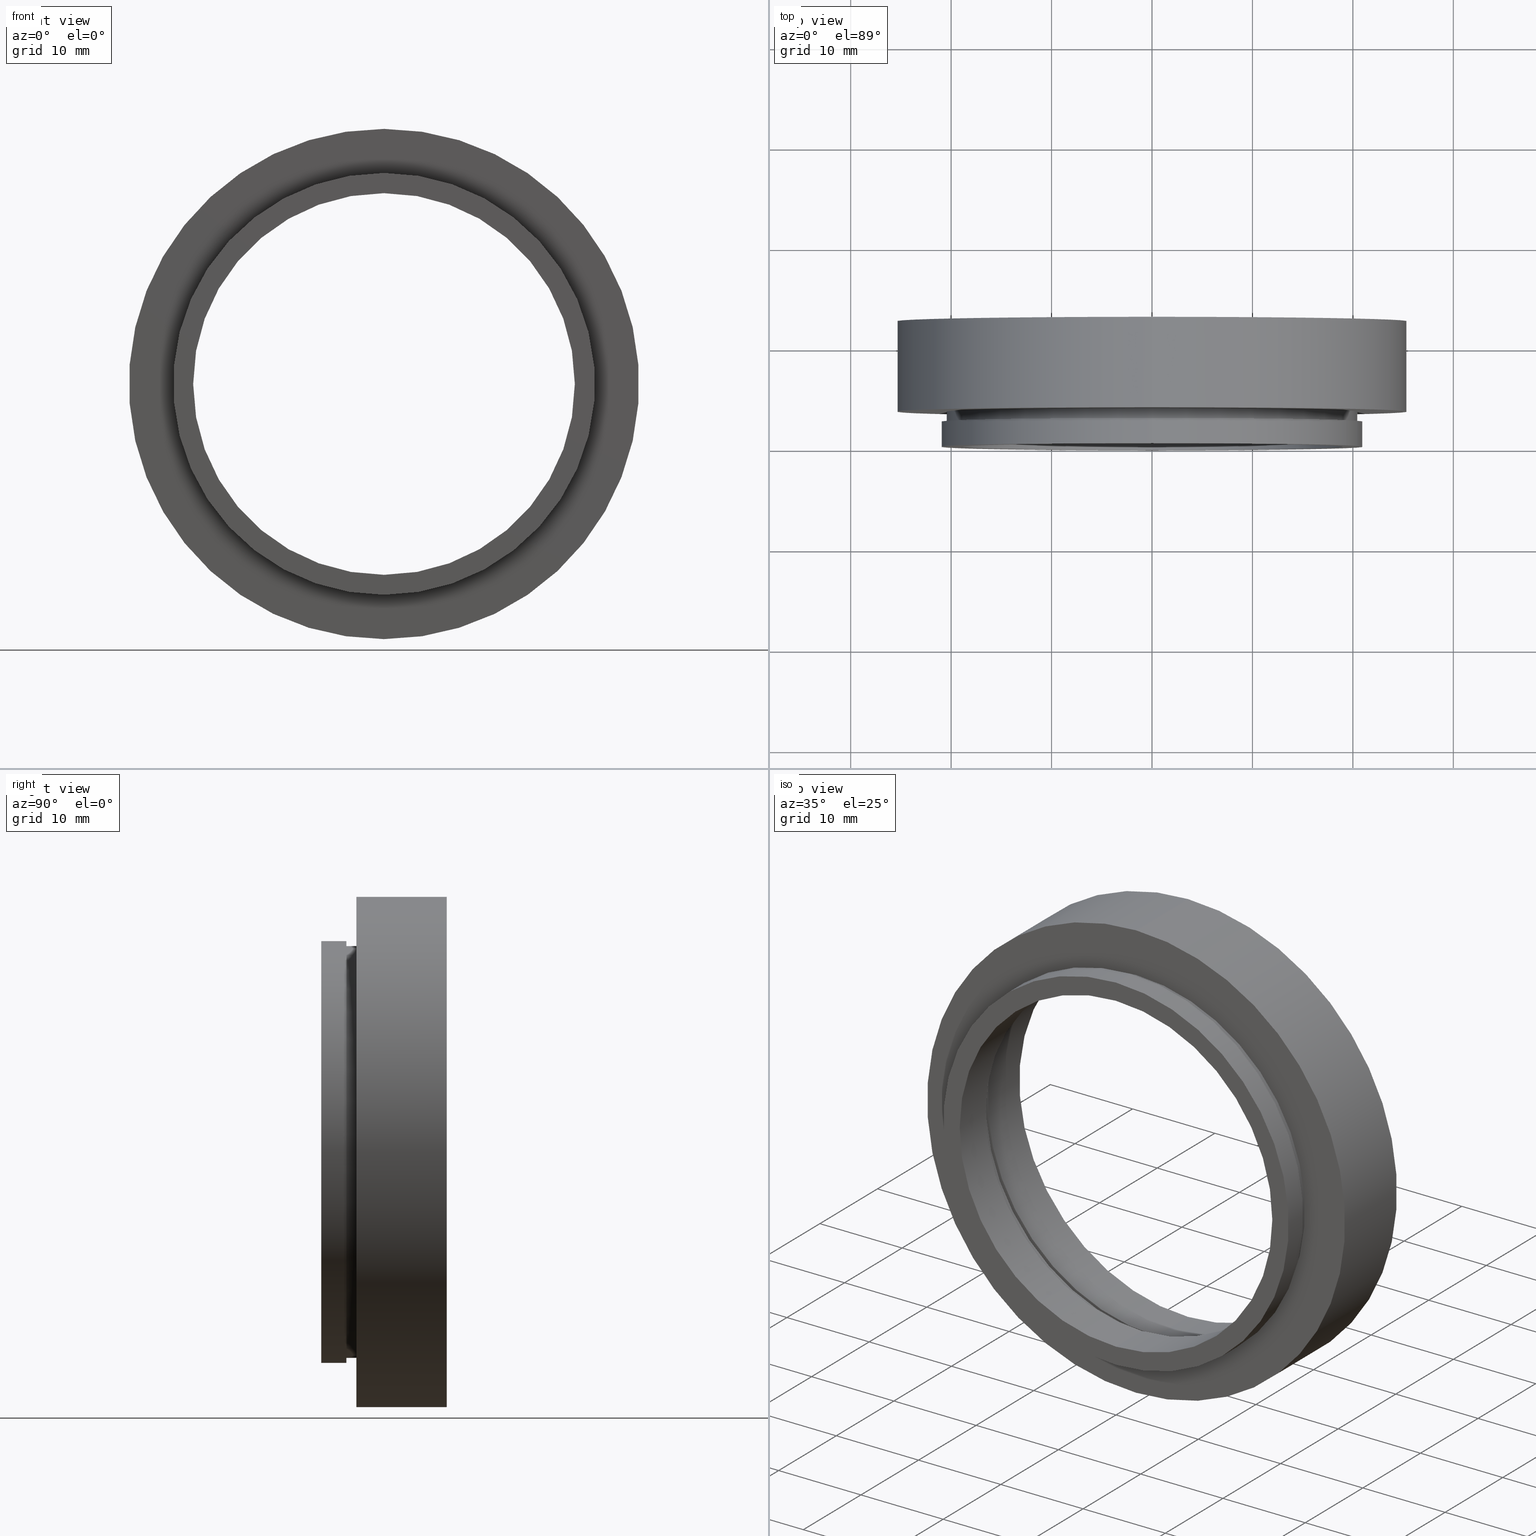
[diagram: canonical four-view strip — front | top / right | iso, engineering-drawing reading convention]
A machine part, canonical four-view strip (front | top / right | iso — engineering-drawing reading convention). The complete STEP part file that produces these views, byte-faithful:
ISO-10303-21;
HEADER;
FILE_DESCRIPTION (( 'STEP AP203' ),
    '1' );
FILE_NAME ('501002.STEP',
    '2019-08-29T06:18:55',
    ( '' ),
    ( '' ),
    'SwSTEP 2.0',
    'SolidWorks 2016',
    '' );
FILE_SCHEMA (( 'CONFIG_CONTROL_DESIGN' ));
ENDSEC;

DATA;
#1 = APPROVAL_PERSON_ORGANIZATION ( #107, #174, #482 ) ;
#2 = CARTESIAN_POINT ( 'NONE',  ( 0.0000000000000000000, 0.0000000000000000000, -20.00000000000000000 ) ) ;
#3 = ORIENTED_EDGE ( 'NONE', *, *, #165, .T. ) ;
#4 = VERTEX_POINT ( 'NONE', #415 ) ;
#5 = DIRECTION ( 'NONE',  ( -0.0000000000000000000, -1.000000000000000000, -0.0000000000000000000 ) ) ;
#6 = FACE_OUTER_BOUND ( 'NONE', #187, .T. ) ;
#7 = FACE_OUTER_BOUND ( 'NONE', #599, .T. ) ;
#8 = AXIS2_PLACEMENT_3D ( 'NONE', #206, #719, #549 ) ;
#9 = CARTESIAN_POINT ( 'NONE',  ( 0.0000000000000000000, 4.500000000000000000, 0.0000000000000000000 ) ) ;
#10 = PLANE ( 'NONE',  #173 ) ;
#11 = CIRCLE ( 'NONE', #564, 20.50000000000000000 ) ;
#12 = EDGE_CURVE ( 'NONE', #325, #627, #545, .T. ) ;
#13 = DIRECTION ( 'NONE',  ( 0.0000000000000000000, -0.0000000000000000000, 1.000000000000000000 ) ) ;
#14 = CARTESIAN_POINT ( 'NONE',  ( 0.0000000000000000000, 7.000000000000000000, 0.0000000000000000000 ) ) ;
#15 = AXIS2_PLACEMENT_3D ( 'NONE', #384, #493, #554 ) ;
#16 = ORGANIZATION ( 'δָ��', 'δָ��', '' ) ;
#17 = DIRECTION ( 'NONE',  ( -0.0000000000000000000, -1.000000000000000000, -0.0000000000000000000 ) ) ;
#18 = ADVANCED_FACE ( 'NONE', ( #93 ), #724, .T. ) ;
#19 = VERTEX_POINT ( 'NONE', #704 ) ;
#20 = DIRECTION ( 'NONE',  ( -0.0000000000000000000, -1.000000000000000000, -0.0000000000000000000 ) ) ;
#21 = EDGE_CURVE ( 'NONE', #445, #163, #298, .T. ) ;
#22 = ADVANCED_FACE ( 'NONE', ( #361, #498 ), #132, .T. ) ;
#23 = CYLINDRICAL_SURFACE ( 'NONE', #79, 19.00000000000000000 ) ;
#24 = AXIS2_PLACEMENT_3D ( 'NONE', #357, #20, #572 ) ;
#25 = DIRECTION ( 'NONE',  ( -0.0000000000000000000, -1.000000000000000000, -0.0000000000000000000 ) ) ;
#26 = VECTOR ( 'NONE', #448, 1000.000000000000000 ) ;
#27 = APPLICATION_PROTOCOL_DEFINITION ( 'international standard', 'config_control_design', 1994, #706 ) ;
#28 = CALENDAR_DATE ( 2019, 29, 8 ) ;
#29 = CC_DESIGN_APPROVAL ( #311, ( #552 ) ) ;
#30 = AXIS2_PLACEMENT_3D ( 'NONE', #586, #474, #330 ) ;
#31 = LINE ( 'NONE', #245, #299 ) ;
#32 = CARTESIAN_POINT ( 'NONE',  ( 0.0000000000000000000, 0.0000000000000000000, 0.0000000000000000000 ) ) ;
#33 = EDGE_CURVE ( 'NONE', #310, #36, #649, .T. ) ;
#34 = DIRECTION ( 'NONE',  ( -0.0000000000000000000, -1.000000000000000000, -0.0000000000000000000 ) ) ;
#35 = CALENDAR_DATE ( 2019, 29, 8 ) ;
#36 = VERTEX_POINT ( 'NONE', #709 ) ;
#37 =( LENGTH_UNIT ( ) NAMED_UNIT ( * ) SI_UNIT ( .MILLI., .METRE. ) );
#38 = DIRECTION ( 'NONE',  ( -0.0000000000000000000, -1.000000000000000000, -0.0000000000000000000 ) ) ;
#39 = FACE_OUTER_BOUND ( 'NONE', #208, .T. ) ;
#40 = DIRECTION ( 'NONE',  ( 0.0000000000000000000, 0.0000000000000000000, -1.000000000000000000 ) ) ;
#41 = ORIENTED_EDGE ( 'NONE', *, *, #165, .F. ) ;
#42 = DIRECTION ( 'NONE',  ( 0.0000000000000000000, 0.0000000000000000000, -1.000000000000000000 ) ) ;
#43 = ORIENTED_EDGE ( 'NONE', *, *, #193, .F. ) ;
#44 = APPROVAL_DATE_TIME ( #668, #211 ) ;
#45 = PRODUCT_DEFINITION ( 'δ֪', '', #727, #512 ) ;
#46 = DIRECTION ( 'NONE',  ( 0.0000000000000000000, 0.0000000000000000000, -1.000000000000000000 ) ) ;
#47 = CARTESIAN_POINT ( 'NONE',  ( 2.510525938252074500E-015, 7.000000000000000000, 20.50000000000000400 ) ) ;
#48 = ORIENTED_EDGE ( 'NONE', *, *, #695, .F. ) ;
#49 = CARTESIAN_POINT ( 'NONE',  ( 0.0000000000000000000, 2.500000000000000000, 0.0000000000000000000 ) ) ;
#50 = CARTESIAN_POINT ( 'NONE',  ( 21.00000000000000000, 2.499999999999999600, 0.0000000000000000000 ) ) ;
#51 = PERSON_AND_ORGANIZATION ( #303, #16 ) ;
#52 = AXIS2_PLACEMENT_3D ( 'NONE', #439, #550, #225 ) ;
#53 = LOCAL_TIME ( 14, 18, 55.00000000000000000, #502 ) ;
#54 = PLANE ( 'NONE',  #674 ) ;
#55 = EDGE_CURVE ( 'NONE', #521, #395, #250, .T. ) ;
#56 = CARTESIAN_POINT ( 'NONE',  ( 0.0000000000000000000, 4.500000000000000000, 0.0000000000000000000 ) ) ;
#57 = ORIENTED_EDGE ( 'NONE', *, *, #354, .T. ) ;
#58 = DATE_AND_TIME ( #35, #182 ) ;
#59 = CARTESIAN_POINT ( 'NONE',  ( 0.0000000000000000000, 0.0000000000000000000, 0.0000000000000000000 ) ) ;
#60 = EDGE_LOOP ( 'NONE', ( #327, #584, #461, #125 ) ) ;
#61 = PLANE ( 'NONE',  #478 ) ;
#62 = PRODUCT ( '501002', '501002', '', ( #470 ) ) ;
#63 = VERTEX_POINT ( 'NONE', #149 ) ;
#64 = CARTESIAN_POINT ( 'NONE',  ( 0.0000000000000000000, 4.500000000000000000, -20.00000000000000000 ) ) ;
#65 = ADVANCED_FACE ( 'NONE', ( #506 ), #714, .T. ) ;
#66 = ORIENTED_EDGE ( 'NONE', *, *, #483, .F. ) ;
#67 = DIRECTION ( 'NONE',  ( 0.0000000000000000000, 0.0000000000000000000, -1.000000000000000000 ) ) ;
#68 = CARTESIAN_POINT ( 'NONE',  ( 2.326828918379971000E-015, 0.0000000000000000000, 19.00000000000000000 ) ) ;
#69 = ORIENTED_EDGE ( 'NONE', *, *, #664, .F. ) ;
#70 = DATE_AND_TIME ( #469, #577 ) ;
#71 = EDGE_CURVE ( 'NONE', #627, #325, #185, .T. ) ;
#72 = APPLICATION_PROTOCOL_DEFINITION ( 'international standard', 'config_control_design', 1994, #312 ) ;
#73 = APPROVAL_ROLE ( '' ) ;
#74 = PERSON_AND_ORGANIZATION_ROLE ( 'classification_officer' ) ;
#75 = ORIENTED_EDGE ( 'NONE', *, *, #289, .F. ) ;
#76 = CC_DESIGN_PERSON_AND_ORGANIZATION_ASSIGNMENT ( #425, #472, ( #552 ) ) ;
#77 = ADVANCED_FACE ( 'NONE', ( #39 ), #580, .T. ) ;
#78 = DIRECTION ( 'NONE',  ( 0.0000000000000000000, 0.0000000000000000000, 1.000000000000000000 ) ) ;
#79 = AXIS2_PLACEMENT_3D ( 'NONE', #666, #332, #156 ) ;
#80 = ORIENTED_EDGE ( 'NONE', *, *, #722, .T. ) ;
#81 = FACE_OUTER_BOUND ( 'NONE', #60, .T. ) ;
#82 = CARTESIAN_POINT ( 'NONE',  ( 0.0000000000000000000, 6.000000000000000000, 0.0000000000000000000 ) ) ;
#83 = APPROVAL_STATUS ( 'not_yet_approved' ) ;
#84 = ADVANCED_FACE ( 'NONE', ( #6 ), #465, .F. ) ;
#85 = DIRECTION ( 'NONE',  ( 0.0000000000000000000, 0.0000000000000000000, -1.000000000000000000 ) ) ;
#86 = COORDINATED_UNIVERSAL_TIME_OFFSET ( 8, 0, .AHEAD. ) ;
#87 = ORIENTED_EDGE ( 'NONE', *, *, #640, .T. ) ;
#88 = LOCAL_TIME ( 14, 18, 55.00000000000000000, #632 ) ;
#89 = ORIENTED_EDGE ( 'NONE', *, *, #397, .F. ) ;
#90 = ADVANCED_FACE ( 'NONE', ( #641 ), #625, .F. ) ;
#91 = APPROVAL_STATUS ( 'not_yet_approved' ) ;
#92 = AXIS2_PLACEMENT_3D ( 'NONE', #360, #78, #536 ) ;
#93 = FACE_OUTER_BOUND ( 'NONE', #390, .T. ) ;
#94 = LINE ( 'NONE', #105, #678 ) ;
#95 = ORIENTED_EDGE ( 'NONE', *, *, #544, .T. ) ;
#96 = AXIS2_PLACEMENT_3D ( 'NONE', #145, #323, #141 ) ;
#97 = DIRECTION ( 'NONE',  ( -0.0000000000000000000, -1.000000000000000000, -0.0000000000000000000 ) ) ;
#98 = ORIENTED_EDGE ( 'NONE', *, *, #33, .F. ) ;
#99 = CARTESIAN_POINT ( 'NONE',  ( 0.0000000000000000000, 6.000000000000000000, 0.0000000000000000000 ) ) ;
#100 = EDGE_CURVE ( 'NONE', #650, #633, #430, .T. ) ;
#101 = ORIENTED_EDGE ( 'NONE', *, *, #12, .F. ) ;
#102 = DIRECTION ( 'NONE',  ( -0.0000000000000000000, -1.000000000000000000, -0.0000000000000000000 ) ) ;
#103 = AXIS2_PLACEMENT_3D ( 'NONE', #638, #353, #685 ) ;
#104 = CARTESIAN_POINT ( 'NONE',  ( 2.510525938252074500E-015, 12.50000000000000000, 20.50000000000000400 ) ) ;
#105 = CARTESIAN_POINT ( 'NONE',  ( 0.0000000000000000000, 0.0000000000000000000, -25.39999999999999900 ) ) ;
#106 = ORIENTED_EDGE ( 'NONE', *, *, #530, .T. ) ;
#107 = PERSON_AND_ORGANIZATION ( #303, #16 ) ;
#108 = VECTOR ( 'NONE', #522, 1000.000000000000000 ) ;
#109 = ORIENTED_EDGE ( 'NONE', *, *, #258, .T. ) ;
#110 = ORIENTED_EDGE ( 'NONE', *, *, #695, .T. ) ;
#111 = CARTESIAN_POINT ( 'NONE',  ( 0.0000000000000000000, 3.500000000000000000, 0.0000000000000000000 ) ) ;
#112 = DIRECTION ( 'NONE',  ( 0.0000000000000000000, 0.0000000000000000000, -1.000000000000000000 ) ) ;
#113 = CIRCLE ( 'NONE', #236, 19.00000000000000000 ) ;
#114 = PRODUCT_RELATED_PRODUCT_CATEGORY ( 'detail', '', ( #62 ) ) ;
#115 = EDGE_CURVE ( 'NONE', #242, #305, #217, .T. ) ;
#116 = CARTESIAN_POINT ( 'NONE',  ( 0.0000000000000000000, 0.0000000000000000000, 0.0000000000000000000 ) ) ;
#117 = ORIENTED_EDGE ( 'NONE', *, *, #247, .T. ) ;
#118 = DIRECTION ( 'NONE',  ( -0.0000000000000000000, -1.000000000000000000, -0.0000000000000000000 ) ) ;
#119 = DIRECTION ( 'NONE',  ( -0.0000000000000000000, -1.000000000000000000, -0.0000000000000000000 ) ) ;
#120 = CARTESIAN_POINT ( 'NONE',  ( 0.0000000000000000000, 0.0000000000000000000, 0.0000000000000000000 ) ) ;
#121 = VERTEX_POINT ( 'NONE', #326 ) ;
#122 = LINE ( 'NONE', #497, #432 ) ;
#123 = LOCAL_TIME ( 14, 18, 55.00000000000000000, #86 ) ;
#124 = ADVANCED_FACE ( 'NONE', ( #166 ), #524, .T. ) ;
#125 = ORIENTED_EDGE ( 'NONE', *, *, #417, .F. ) ;
#126 = EDGE_CURVE ( 'NONE', #36, #310, #616, .T. ) ;
#127 = APPROVAL ( #91, 'δָ��' ) ;
#128 = DIRECTION ( 'NONE',  ( 0.0000000000000000000, 0.0000000000000000000, -1.000000000000000000 ) ) ;
#129 = CIRCLE ( 'NONE', #426, 20.50000000000000000 ) ;
#130 = CARTESIAN_POINT ( 'NONE',  ( 21.10000000000000100, 6.000000000000000000, 0.0000000000000000000 ) ) ;
#131 = ORIENTED_EDGE ( 'NONE', *, *, #71, .T. ) ;
#132 = PLANE ( 'NONE',  #221 ) ;
#133 = DIRECTION ( 'NONE',  ( -0.0000000000000000000, -1.000000000000000000, -0.0000000000000000000 ) ) ;
#134 = DATE_TIME_ROLE ( 'creation_date' ) ;
#135 = AXIS2_PLACEMENT_3D ( 'NONE', #721, #38, #215 ) ;
#136 = PERSON_AND_ORGANIZATION_ROLE ( 'creator' ) ;
#137 = FACE_BOUND ( 'NONE', #181, .T. ) ;
#138 = CARTESIAN_POINT ( 'NONE',  ( 25.39999999999999900, 12.50000000000000000, 0.0000000000000000000 ) ) ;
#139 = LINE ( 'NONE', #462, #108 ) ;
#140 = ADVANCED_BREP_SHAPE_REPRESENTATION ( '501002', ( #595, #92 ), #359 ) ;
#141 = DIRECTION ( 'NONE',  ( 0.0000000000000000000, 0.0000000000000000000, -1.000000000000000000 ) ) ;
#142 = VERTEX_POINT ( 'NONE', #603 ) ;
#143 = PERSON_AND_ORGANIZATION ( #303, #16 ) ;
#144 = EDGE_LOOP ( 'NONE', ( #365, #570, #532, #642 ) ) ;
#145 = CARTESIAN_POINT ( 'NONE',  ( 0.0000000000000000000, 0.0000000000000000000, 0.0000000000000000000 ) ) ;
#146 = ORIENTED_EDGE ( 'NONE', *, *, #602, .T. ) ;
#147 = CARTESIAN_POINT ( 'NONE',  ( 0.0000000000000000000, 2.499999999999999600, 0.0000000000000000000 ) ) ;
#148 = ORIENTED_EDGE ( 'NONE', *, *, #71, .F. ) ;
#149 = CARTESIAN_POINT ( 'NONE',  ( 2.510525938252074500E-015, 3.500000000000000000, 20.50000000000000000 ) ) ;
#150 = CARTESIAN_POINT ( 'NONE',  ( 0.0000000000000000000, 0.0000000000000000000, -21.00000000000000000 ) ) ;
#151 = FACE_OUTER_BOUND ( 'NONE', #161, .T. ) ;
#152 = DIRECTION ( 'NONE',  ( -0.0000000000000000000, -1.000000000000000000, -0.0000000000000000000 ) ) ;
#153 = SECURITY_CLASSIFICATION_LEVEL ( 'unclassified' ) ;
#154 = CARTESIAN_POINT ( 'NONE',  ( 2.510525938252074500E-015, 0.0000000000000000000, 20.50000000000000000 ) ) ;
#155 = CIRCLE ( 'NONE', #279, 20.00000000000000000 ) ;
#156 = DIRECTION ( 'NONE',  ( 0.0000000000000000000, 0.0000000000000000000, -1.000000000000000000 ) ) ;
#157 = EDGE_CURVE ( 'NONE', #380, #521, #604, .T. ) ;
#158 = DIRECTION ( 'NONE',  ( -0.0000000000000000000, -1.000000000000000000, -0.0000000000000000000 ) ) ;
#159 = DIRECTION ( 'NONE',  ( 0.0000000000000000000, 0.0000000000000000000, -1.000000000000000000 ) ) ;
#160 = DATE_AND_TIME ( #492, #443 ) ;
#161 = EDGE_LOOP ( 'NONE', ( #101, #563, #537, #411 ) ) ;
#162 = PERSON_AND_ORGANIZATION ( #303, #16 ) ;
#163 = VERTEX_POINT ( 'NONE', #435 ) ;
#164 = SECURITY_CLASSIFICATION ( '', '', #647 ) ;
#165 = EDGE_CURVE ( 'NONE', #395, #521, #471, .T. ) ;
#166 = FACE_OUTER_BOUND ( 'NONE', #343, .T. ) ;
#167 = FACE_BOUND ( 'NONE', #652, .T. ) ;
#168 = AXIS2_PLACEMENT_3D ( 'NONE', #335, #158, #553 ) ;
#169 = DIRECTION ( 'NONE',  ( -0.0000000000000000000, -1.000000000000000000, -0.0000000000000000000 ) ) ;
#170 = CIRCLE ( 'NONE', #457, 20.00000000000000000 ) ;
#171 = CIRCLE ( 'NONE', #387, 21.10000000000000100 ) ;
#172 = COORDINATED_UNIVERSAL_TIME_OFFSET ( 8, 0, .AHEAD. ) ;
#173 = AXIS2_PLACEMENT_3D ( 'NONE', #503, #229, #394 ) ;
#174 = APPROVAL ( #83, 'δָ��' ) ;
#175 = CIRCLE ( 'NONE', #15, 25.39999999999999900 ) ;
#176 = EDGE_CURVE ( 'NONE', #19, #540, #175, .T. ) ;
#177 = CARTESIAN_POINT ( 'NONE',  ( 2.510525938252074500E-015, 0.0000000000000000000, 20.50000000000000400 ) ) ;
#178 = AXIS2_PLACEMENT_3D ( 'NONE', #116, #571, #398 ) ;
#179 = PERSON_AND_ORGANIZATION ( #303, #16 ) ;
#180 = DIRECTION ( 'NONE',  ( 0.0000000000000000000, 0.0000000000000000000, -1.000000000000000000 ) ) ;
#181 = EDGE_LOOP ( 'NONE', ( #447, #675 ) ) ;
#182 = LOCAL_TIME ( 14, 18, 55.00000000000000000, #204 ) ;
#183 = EDGE_LOOP ( 'NONE', ( #385, #43 ) ) ;
#184 = DIRECTION ( 'NONE',  ( 0.0000000000000000000, 0.0000000000000000000, -1.000000000000000000 ) ) ;
#185 = CIRCLE ( 'NONE', #628, 20.50000000000000400 ) ;
#186 = LINE ( 'NONE', #68, #489 ) ;
#187 = EDGE_LOOP ( 'NONE', ( #658, #526, #265, #203 ) ) ;
#188 = CARTESIAN_POINT ( 'NONE',  ( 0.0000000000000000000, 6.000000000000000000, -20.00000000000000000 ) ) ;
#189 = VERTEX_POINT ( 'NONE', #436 ) ;
#190 = DIRECTION ( 'NONE',  ( -0.0000000000000000000, -1.000000000000000000, -0.0000000000000000000 ) ) ;
#191 = VECTOR ( 'NONE', #133, 1000.000000000000000 ) ;
#192 = COORDINATED_UNIVERSAL_TIME_OFFSET ( 8, 0, .AHEAD. ) ;
#193 = EDGE_CURVE ( 'NONE', #4, #611, #565, .T. ) ;
#194 = DIRECTION ( 'NONE',  ( 1.000000000000000000, 0.0000000000000000000, 0.0000000000000000000 ) ) ;
#195 = LINE ( 'NONE', #420, #191 ) ;
#196 = VECTOR ( 'NONE', #152, 1000.000000000000000 ) ;
#197 = ORIENTED_EDGE ( 'NONE', *, *, #429, .T. ) ;
#198 = DATE_TIME_ROLE ( 'classification_date' ) ;
#199 = PRODUCT_RELATED_PRODUCT_CATEGORY ( 'detail', '', ( #681 ) ) ;
#200 = ADVANCED_FACE ( 'NONE', ( #81 ), #23, .F. ) ;
#201 = DATE_TIME_ROLE ( 'creation_date' ) ;
#202 = PERSON_AND_ORGANIZATION ( #303, #16 ) ;
#203 = ORIENTED_EDGE ( 'NONE', *, *, #289, .T. ) ;
#204 = COORDINATED_UNIVERSAL_TIME_OFFSET ( 8, 0, .AHEAD. ) ;
#205 = ADVANCED_FACE ( 'NONE', ( #280 ), #369, .F. ) ;
#206 = CARTESIAN_POINT ( 'NONE',  ( 0.0000000000000000000, 0.0000000000000000000, 0.0000000000000000000 ) ) ;
#207 = CC_DESIGN_DATE_AND_TIME_ASSIGNMENT ( #329, #198, ( #164 ) ) ;
#208 = EDGE_LOOP ( 'NONE', ( #423, #356, #95, #407 ) ) ;
#209 = EDGE_CURVE ( 'NONE', #637, #551, #618, .T. ) ;
#210 = AXIS2_PLACEMENT_3D ( 'NONE', #619, #665, #331 ) ;
#211 = APPROVAL ( #418, 'δָ��' ) ;
#212 = CARTESIAN_POINT ( 'NONE',  ( 0.0000000000000000000, 0.0000000000000000000, 0.0000000000000000000 ) ) ;
#213 = CLOSED_SHELL ( 'NONE', ( #352, #578, #596, #481, #65, #124, #200, #84, #520, #18, #241, #77, #246, #543, #705, #367, #301, #205, #22, #90, #370 ) ) ;
#214 = PERSON_AND_ORGANIZATION ( #303, #16 ) ;
#215 = DIRECTION ( 'NONE',  ( 0.0000000000000000000, 0.0000000000000000000, -1.000000000000000000 ) ) ;
#216 = DIRECTION ( 'NONE',  ( -0.0000000000000000000, -1.000000000000000000, -0.0000000000000000000 ) ) ;
#217 = CIRCLE ( 'NONE', #441, 21.00000000000000000 ) ;
#218 = ORIENTED_EDGE ( 'NONE', *, *, #488, .T. ) ;
#219 = DIRECTION ( 'NONE',  ( -0.0000000000000000000, -1.000000000000000000, -0.0000000000000000000 ) ) ;
#220 = CARTESIAN_POINT ( 'NONE',  ( 0.0000000000000000000, 4.500000000000000000, 0.0000000000000000000 ) ) ;
#221 = AXIS2_PLACEMENT_3D ( 'NONE', #130, #266, #487 ) ;
#222 = DIRECTION ( 'NONE',  ( 0.0000000000000000000, 0.0000000000000000000, -1.000000000000000000 ) ) ;
#223 = ORIENTED_EDGE ( 'NONE', *, *, #403, .F. ) ;
#224 = DATE_AND_TIME ( #248, #610 ) ;
#225 = DIRECTION ( 'NONE',  ( 0.0000000000000000000, 0.0000000000000000000, -1.000000000000000000 ) ) ;
#226 = DIRECTION ( 'NONE',  ( -0.0000000000000000000, -1.000000000000000000, -0.0000000000000000000 ) ) ;
#227 = ORIENTED_EDGE ( 'NONE', *, *, #21, .F. ) ;
#228 = ORIENTED_EDGE ( 'NONE', *, *, #651, .T. ) ;
#229 = DIRECTION ( 'NONE',  ( 0.0000000000000000000, -1.000000000000000000, -0.0000000000000000000 ) ) ;
#230 = ORIENTED_EDGE ( 'NONE', *, *, #55, .T. ) ;
#231 = APPROVAL_DATE_TIME ( #375, #262 ) ;
#232 = CC_DESIGN_PERSON_AND_ORGANIZATION_ASSIGNMENT ( #202, #587, ( #661 ) ) ;
#233 = AXIS2_PLACEMENT_3D ( 'NONE', #56, #624, #346 ) ;
#234 = AXIS2_PLACEMENT_3D ( 'NONE', #120, #518, #510 ) ;
#235 = CARTESIAN_POINT ( 'NONE',  ( 20.00000000000000000, 4.500000000000000000, 0.0000000000000000000 ) ) ;
#236 = AXIS2_PLACEMENT_3D ( 'NONE', #290, #629, #568 ) ;
#237 = PERSON_AND_ORGANIZATION ( #303, #16 ) ;
#238 = CARTESIAN_POINT ( 'NONE',  ( 0.0000000000000000000, 12.50000000000000000, -20.50000000000000400 ) ) ;
#239 = CIRCLE ( 'NONE', #404, 19.00000000000000000 ) ;
#240 = EDGE_LOOP ( 'NONE', ( #561, #106 ) ) ;
#241 = ADVANCED_FACE ( 'NONE', ( #593, #7 ), #548, .T. ) ;
#242 = VERTEX_POINT ( 'NONE', #389 ) ;
#243 = APPROVAL ( #416, 'δָ��' ) ;
#244 = PERSON_AND_ORGANIZATION ( #303, #16 ) ;
#245 = CARTESIAN_POINT ( 'NONE',  ( 0.0000000000000000000, 0.0000000000000000000, -21.10000000000000100 ) ) ;
#246 = ADVANCED_FACE ( 'NONE', ( #322, #137 ), #54, .T. ) ;
#247 = EDGE_CURVE ( 'NONE', #699, #611, #440, .T. ) ;
#248 = CALENDAR_DATE ( 2019, 29, 8 ) ;
#249 = DIRECTION ( 'NONE',  ( -0.0000000000000000000, -1.000000000000000000, -0.0000000000000000000 ) ) ;
#250 = CIRCLE ( 'NONE', #466, 21.10000000000000100 ) ;
#251 = VECTOR ( 'NONE', #615, 1000.000000000000000 ) ;
#252 = APPROVAL_STATUS ( 'not_yet_approved' ) ;
#253 = AXIS2_PLACEMENT_3D ( 'NONE', #383, #662, #491 ) ;
#254 = PLANE ( 'NONE',  #292 ) ;
#255 = DIRECTION ( 'NONE',  ( -0.0000000000000000000, -1.000000000000000000, -0.0000000000000000000 ) ) ;
#256 = APPROVAL_ROLE ( '' ) ;
#257 = VERTEX_POINT ( 'NONE', #609 ) ;
#258 = EDGE_CURVE ( 'NONE', #627, #36, #122, .T. ) ;
#259 = APPLICATION_CONTEXT ( 'configuration controlled 3d designs of mechanical parts and assemblies' ) ;
#260 = MECHANICAL_CONTEXT ( 'NONE', #259, 'mechanical' ) ;
#261 = AXIS2_PLACEMENT_3D ( 'NONE', #433, #381, #373 ) ;
#262 = APPROVAL ( #531, 'δָ��' ) ;
#263 = DIRECTION ( 'NONE',  ( 0.0000000000000000000, 0.0000000000000000000, -1.000000000000000000 ) ) ;
#264 = VECTOR ( 'NONE', #17, 1000.000000000000000 ) ;
#265 = ORIENTED_EDGE ( 'NONE', *, *, #417, .T. ) ;
#266 = DIRECTION ( 'NONE',  ( 0.0000000000000000000, 1.000000000000000000, 0.0000000000000000000 ) ) ;
#267 = CALENDAR_DATE ( 2019, 29, 8 ) ;
#268 = DIRECTION ( 'NONE',  ( 0.0000000000000000000, 0.0000000000000000000, -1.000000000000000000 ) ) ;
#269 = LINE ( 'NONE', #150, #546 ) ;
#270 = FACE_OUTER_BOUND ( 'NONE', #547, .T. ) ;
#271 = EDGE_LOOP ( 'NONE', ( #362, #693, #480, #3 ) ) ;
#272 = CARTESIAN_POINT ( 'NONE',  ( 0.0000000000000000000, 2.499999999999999600, -21.00000000000000000 ) ) ;
#273 = CIRCLE ( 'NONE', #442, 21.10000000000000100 ) ;
#274 = EDGE_LOOP ( 'NONE', ( #690, #146, #227, #287 ) ) ;
#275 = DIRECTION ( 'NONE',  ( 0.0000000000000000000, 0.0000000000000000000, -1.000000000000000000 ) ) ;
#276 = EDGE_CURVE ( 'NONE', #551, #637, #129, .T. ) ;
#277 = DIRECTION ( 'NONE',  ( -0.0000000000000000000, -1.000000000000000000, -0.0000000000000000000 ) ) ;
#278 = CC_DESIGN_PERSON_AND_ORGANIZATION_ASSIGNMENT ( #358, #475, ( #45 ) ) ;
#279 = AXIS2_PLACEMENT_3D ( 'NONE', #687, #406, #686 ) ;
#280 = FACE_OUTER_BOUND ( 'NONE', #271, .T. ) ;
#281 = DIRECTION ( 'NONE',  ( 0.0000000000000000000, 0.0000000000000000000, -1.000000000000000000 ) ) ;
#282 = EDGE_LOOP ( 'NONE', ( #197, #57 ) ) ;
#283 = EDGE_LOOP ( 'NONE', ( #75, #66 ) ) ;
#284 = CARTESIAN_POINT ( 'NONE',  ( 0.0000000000000000000, 0.0000000000000000000, 0.0000000000000000000 ) ) ;
#285 = ORIENTED_EDGE ( 'NONE', *, *, #682, .T. ) ;
#286 = LINE ( 'NONE', #400, #26 ) ;
#287 = ORIENTED_EDGE ( 'NONE', *, *, #364, .F. ) ;
#288 = CARTESIAN_POINT ( 'NONE',  ( 2.584004746200915400E-015, 6.000000000000000000, 21.10000000000000100 ) ) ;
#289 = EDGE_CURVE ( 'NONE', #697, #142, #582, .T. ) ;
#290 = CARTESIAN_POINT ( 'NONE',  ( 0.0000000000000000000, 4.500000000000000000, 0.0000000000000000000 ) ) ;
#291 = CIRCLE ( 'NONE', #168, 20.50000000000000000 ) ;
#292 = AXIS2_PLACEMENT_3D ( 'NONE', #138, #654, #479 ) ;
#293 = EDGE_LOOP ( 'NONE', ( #670, #80, #427, #707 ) ) ;
#294 = CARTESIAN_POINT ( 'NONE',  ( 2.449293598294706500E-015, 6.000000000000000000, 20.00000000000000000 ) ) ;
#295 = CARTESIAN_POINT ( 'NONE',  ( 2.584004746200915400E-015, 7.000000000000000000, 21.10000000000000100 ) ) ;
#296 = CIRCLE ( 'NONE', #511, 20.00000000000000000 ) ;
#297 = AXIS2_PLACEMENT_3D ( 'NONE', #539, #613, #263 ) ;
#298 = CIRCLE ( 'NONE', #30, 25.39999999999999900 ) ;
#299 = VECTOR ( 'NONE', #507, 1000.000000000000000 ) ;
#300 = APPROVAL_DATE_TIME ( #347, #311 ) ;
#301 = ADVANCED_FACE ( 'NONE', ( #270, #167 ), #386, .T. ) ;
#302 = EDGE_CURVE ( 'NONE', #305, #650, #269, .T. ) ;
#303 = PERSON ( 'δָ��', 'δָ��', 'δָ��', ('δָ��'), ('δָ��'), ('δָ��') ) ;
#304 = CYLINDRICAL_SURFACE ( 'NONE', #314, 25.39999999999999900 ) ;
#305 = VERTEX_POINT ( 'NONE', #272 ) ;
#306 = COORDINATED_UNIVERSAL_TIME_OFFSET ( 8, 0, .AHEAD. ) ;
#307 = DIRECTION ( 'NONE',  ( -0.0000000000000000000, -1.000000000000000000, -0.0000000000000000000 ) ) ;
#308 = EDGE_LOOP ( 'NONE', ( #495, #450 ) ) ;
#309 = CARTESIAN_POINT ( 'NONE',  ( 2.510525938252074500E-015, 2.500000000000000000, 20.50000000000000000 ) ) ;
#310 = VERTEX_POINT ( 'NONE', #47 ) ;
#311 = APPROVAL ( #252, 'δָ��' ) ;
#312 = APPLICATION_CONTEXT ( 'configuration controlled 3d designs of mechanical parts and assemblies' ) ;
#313 = ORIENTED_EDGE ( 'NONE', *, *, #364, .T. ) ;
#314 = AXIS2_PLACEMENT_3D ( 'NONE', #449, #169, #184 ) ;
#315 = DIRECTION ( 'NONE',  ( 0.0000000000000000000, 0.0000000000000000000, -1.000000000000000000 ) ) ;
#316 = PERSON_AND_ORGANIZATION_ROLE ( 'design_owner' ) ;
#317 = ORIENTED_EDGE ( 'NONE', *, *, #12, .T. ) ;
#318 = LINE ( 'NONE', #505, #607 ) ;
#319 = PERSON_AND_ORGANIZATION ( #303, #16 ) ;
#320 = EDGE_LOOP ( 'NONE', ( #41, #605 ) ) ;
#321 = EDGE_LOOP ( 'NONE', ( #667, #285, #313, #677 ) ) ;
#322 = FACE_OUTER_BOUND ( 'NONE', #240, .T. ) ;
#323 = DIRECTION ( 'NONE',  ( -0.0000000000000000000, -1.000000000000000000, -0.0000000000000000000 ) ) ;
#324 = EDGE_CURVE ( 'NONE', #63, #551, #566, .T. ) ;
#325 = VERTEX_POINT ( 'NONE', #104 ) ;
#326 = CARTESIAN_POINT ( 'NONE',  ( 0.0000000000000000000, 4.500000000000000000, -19.00000000000000000 ) ) ;
#327 = ORIENTED_EDGE ( 'NONE', *, *, #354, .F. ) ;
#328 = FACE_BOUND ( 'NONE', #282, .T. ) ;
#329 = DATE_AND_TIME ( #676, #600 ) ;
#330 = DIRECTION ( 'NONE',  ( 0.0000000000000000000, 0.0000000000000000000, -1.000000000000000000 ) ) ;
#331 = DIRECTION ( 'NONE',  ( 0.0000000000000000000, 0.0000000000000000000, -1.000000000000000000 ) ) ;
#332 = DIRECTION ( 'NONE',  ( -0.0000000000000000000, -1.000000000000000000, -0.0000000000000000000 ) ) ;
#333 = EDGE_CURVE ( 'NONE', #63, #257, #291, .T. ) ;
#334 = DIRECTION ( 'NONE',  ( -0.0000000000000000000, -1.000000000000000000, -0.0000000000000000000 ) ) ;
#335 = CARTESIAN_POINT ( 'NONE',  ( 0.0000000000000000000, 3.500000000000000000, 0.0000000000000000000 ) ) ;
#336 = EDGE_LOOP ( 'NONE', ( #419, #374 ) ) ;
#337 = AXIS2_PLACEMENT_3D ( 'NONE', #527, #190, #591 ) ;
#338 = DIRECTION ( 'NONE',  ( 0.0000000000000000000, -0.0000000000000000000, 1.000000000000000000 ) ) ;
#339 = DIRECTION ( 'NONE',  ( -0.0000000000000000000, -1.000000000000000000, -0.0000000000000000000 ) ) ;
#340 = DIRECTION ( 'NONE',  ( 0.0000000000000000000, 1.000000000000000000, 0.0000000000000000000 ) ) ;
#341 = EDGE_LOOP ( 'NONE', ( #631, #626 ) ) ;
#342 = DATE_AND_TIME ( #28, #523 ) ;
#343 = EDGE_LOOP ( 'NONE', ( #228, #622, #500, #655 ) ) ;
#344 = CARTESIAN_POINT ( 'NONE',  ( 0.0000000000000000000, 6.000000000000000000, -21.10000000000000100 ) ) ;
#345 = DIRECTION ( 'NONE',  ( 0.0000000000000000000, 0.0000000000000000000, -1.000000000000000000 ) ) ;
#346 = DIRECTION ( 'NONE',  ( 0.0000000000000000000, 0.0000000000000000000, -1.000000000000000000 ) ) ;
#347 = DATE_AND_TIME ( #673, #123 ) ;
#348 = DIRECTION ( 'NONE',  ( -0.0000000000000000000, -1.000000000000000000, -0.0000000000000000000 ) ) ;
#349 = CALENDAR_DATE ( 2019, 29, 8 ) ;
#350 = AXIS2_PLACEMENT_3D ( 'NONE', #50, #720, #338 ) ;
#351 = UNCERTAINTY_MEASURE_WITH_UNIT (LENGTH_MEASURE( 1.000000000000000100E-005 ), #37, 'distance_accuracy_value', 'NONE');
#352 = ADVANCED_FACE ( 'NONE', ( #525 ), #581, .F. ) ;
#353 = DIRECTION ( 'NONE',  ( -0.0000000000000000000, -1.000000000000000000, -0.0000000000000000000 ) ) ;
#354 = EDGE_CURVE ( 'NONE', #189, #121, #113, .T. ) ;
#355 = CC_DESIGN_APPROVAL ( #211, ( #45 ) ) ;
#356 = ORIENTED_EDGE ( 'NONE', *, *, #333, .T. ) ;
#357 = CARTESIAN_POINT ( 'NONE',  ( 0.0000000000000000000, 0.0000000000000000000, 0.0000000000000000000 ) ) ;
#358 = PERSON_AND_ORGANIZATION ( #303, #16 ) ;
#359 =( GEOMETRIC_REPRESENTATION_CONTEXT ( 3 ) GLOBAL_UNCERTAINTY_ASSIGNED_CONTEXT ( ( #351 ) ) GLOBAL_UNIT_ASSIGNED_CONTEXT ( ( #37, #698, #594 ) ) REPRESENTATION_CONTEXT ( 'NONE', 'WORKASPACE' ) );
#360 = CARTESIAN_POINT ( 'NONE',  ( 0.0000000000000000000, 0.0000000000000000000, 0.0000000000000000000 ) ) ;
#361 = FACE_BOUND ( 'NONE', #710, .T. ) ;
#362 = ORIENTED_EDGE ( 'NONE', *, *, #157, .F. ) ;
#363 = APPLICATION_PROTOCOL_DEFINITION ( 'international standard', 'config_control_design', 1994, #700 ) ;
#364 = EDGE_CURVE ( 'NONE', #19, #445, #94, .T. ) ;
#365 = ORIENTED_EDGE ( 'NONE', *, *, #614, .T. ) ;
#366 = APPROVAL_PERSON_ORGANIZATION ( #143, #262, #256 ) ;
#367 = ADVANCED_FACE ( 'NONE', ( #715 ), #711, .F. ) ;
#368 = AXIS2_PLACEMENT_3D ( 'NONE', #713, #424, #46 ) ;
#369 = CYLINDRICAL_SURFACE ( 'NONE', #52, 21.10000000000000100 ) ;
#370 = ADVANCED_FACE ( 'NONE', ( #328, #428 ), #61, .T. ) ;
#371 = CARTESIAN_POINT ( 'NONE',  ( 0.0000000000000000000, 12.50000000000000000, 0.0000000000000000000 ) ) ;
#372 = CIRCLE ( 'NONE', #405, 25.39999999999999900 ) ;
#373 = DIRECTION ( 'NONE',  ( 0.0000000000000000000, 0.0000000000000000000, -1.000000000000000000 ) ) ;
#374 = ORIENTED_EDGE ( 'NONE', *, *, #403, .T. ) ;
#375 = DATE_AND_TIME ( #267, #88 ) ;
#376 = ORIENTED_EDGE ( 'NONE', *, *, #302, .T. ) ;
#377 = CARTESIAN_POINT ( 'NONE',  ( 0.0000000000000000000, 7.000000000000000000, 0.0000000000000000000 ) ) ;
#378 = APPROVAL_ROLE ( '' ) ;
#379 = CC_DESIGN_PERSON_AND_ORGANIZATION_ASSIGNMENT ( #51, #592, ( #552 ) ) ;
#380 = VERTEX_POINT ( 'NONE', #295 ) ;
#381 = DIRECTION ( 'NONE',  ( -0.0000000000000000000, -1.000000000000000000, -0.0000000000000000000 ) ) ;
#382 = EDGE_CURVE ( 'NONE', #242, #633, #318, .T. ) ;
#383 = CARTESIAN_POINT ( 'NONE',  ( 0.0000000000000000000, 2.500000000000000000, 0.0000000000000000000 ) ) ;
#384 = CARTESIAN_POINT ( 'NONE',  ( 0.0000000000000000000, 12.50000000000000000, 0.0000000000000000000 ) ) ;
#385 = ORIENTED_EDGE ( 'NONE', *, *, #488, .F. ) ;
#386 = PLANE ( 'NONE',  #585 ) ;
#387 = AXIS2_PLACEMENT_3D ( 'NONE', #514, #348, #694 ) ;
#388 = FACE_BOUND ( 'NONE', #283, .T. ) ;
#389 = CARTESIAN_POINT ( 'NONE',  ( 2.571758278209441700E-015, 2.499999999999999600, 21.00000000000000000 ) ) ;
#390 = EDGE_LOOP ( 'NONE', ( #434, #414, #376, #223 ) ) ;
#391 = DIRECTION ( 'NONE',  ( 0.0000000000000000000, 0.0000000000000000000, -1.000000000000000000 ) ) ;
#392 = EDGE_LOOP ( 'NONE', ( #48, #679, #230, #69 ) ) ;
#393 = COORDINATED_UNIVERSAL_TIME_OFFSET ( 8, 0, .AHEAD. ) ;
#394 = DIRECTION ( 'NONE',  ( 0.0000000000000000000, 0.0000000000000000000, -1.000000000000000000 ) ) ;
#395 = VERTEX_POINT ( 'NONE', #344 ) ;
#396 = APPROVAL_DATE_TIME ( #342, #243 ) ;
#397 = EDGE_CURVE ( 'NONE', #699, #468, #170, .T. ) ;
#398 = DIRECTION ( 'NONE',  ( 0.0000000000000000000, 0.0000000000000000000, -1.000000000000000000 ) ) ;
#399 = CC_DESIGN_PERSON_AND_ORGANIZATION_ASSIGNMENT ( #688, #589, ( #62 ) ) ;
#400 = CARTESIAN_POINT ( 'NONE',  ( 0.0000000000000000000, 0.0000000000000000000, -19.00000000000000000 ) ) ;
#401 = DIRECTION ( 'NONE',  ( 0.0000000000000000000, 0.0000000000000000000, -1.000000000000000000 ) ) ;
#402 = CARTESIAN_POINT ( 'NONE',  ( 0.0000000000000000000, 6.000000000000000000, 0.0000000000000000000 ) ) ;
#403 = EDGE_CURVE ( 'NONE', #633, #650, #562, .T. ) ;
#404 = AXIS2_PLACEMENT_3D ( 'NONE', #672, #451, #559 ) ;
#405 = AXIS2_PLACEMENT_3D ( 'NONE', #579, #644, #691 ) ;
#406 = DIRECTION ( 'NONE',  ( -0.0000000000000000000, -1.000000000000000000, -0.0000000000000000000 ) ) ;
#407 = ORIENTED_EDGE ( 'NONE', *, *, #276, .F. ) ;
#408 = CC_DESIGN_PERSON_AND_ORGANIZATION_ASSIGNMENT ( #162, #702, ( #727 ) ) ;
#409 = CARTESIAN_POINT ( 'NONE',  ( 0.0000000000000000000, 3.500000000000000000, 0.0000000000000000000 ) ) ;
#410 = CIRCLE ( 'NONE', #519, 25.39999999999999900 ) ;
#411 = ORIENTED_EDGE ( 'NONE', *, *, #258, .F. ) ;
#412 = CARTESIAN_POINT ( 'NONE',  ( 0.0000000000000000000, 0.0000000000000000000, -19.00000000000000000 ) ) ;
#413 = CYLINDRICAL_SURFACE ( 'NONE', #24, 20.50000000000000400 ) ;
#414 = ORIENTED_EDGE ( 'NONE', *, *, #115, .T. ) ;
#415 = CARTESIAN_POINT ( 'NONE',  ( 2.449293598294706500E-015, 4.500000000000000000, 20.00000000000000000 ) ) ;
#416 = APPROVAL_STATUS ( 'not_yet_approved' ) ;
#417 = EDGE_CURVE ( 'NONE', #121, #697, #286, .T. ) ;
#418 = APPROVAL_STATUS ( 'not_yet_approved' ) ;
#419 = ORIENTED_EDGE ( 'NONE', *, *, #100, .T. ) ;
#420 = CARTESIAN_POINT ( 'NONE',  ( 2.449293598294706500E-015, 0.0000000000000000000, 20.00000000000000000 ) ) ;
#421 = FACE_OUTER_BOUND ( 'NONE', #274, .T. ) ;
#422 = DESIGN_CONTEXT ( 'detailed design', #706, 'design' ) ;
#423 = ORIENTED_EDGE ( 'NONE', *, *, #324, .F. ) ;
#424 = DIRECTION ( 'NONE',  ( -0.0000000000000000000, -1.000000000000000000, -0.0000000000000000000 ) ) ;
#425 = PERSON_AND_ORGANIZATION ( #303, #16 ) ;
#426 = AXIS2_PLACEMENT_3D ( 'NONE', #49, #334, #671 ) ;
#427 = ORIENTED_EDGE ( 'NONE', *, *, #193, .T. ) ;
#428 = FACE_OUTER_BOUND ( 'NONE', #183, .T. ) ;
#429 = EDGE_CURVE ( 'NONE', #121, #189, #535, .T. ) ;
#430 = CIRCLE ( 'NONE', #297, 21.00000000000000000 ) ;
#431 = FACE_BOUND ( 'NONE', #726, .T. ) ;
#432 = VECTOR ( 'NONE', #556, 1000.000000000000000 ) ;
#433 = CARTESIAN_POINT ( 'NONE',  ( 0.0000000000000000000, 0.0000000000000000000, 0.0000000000000000000 ) ) ;
#434 = ORIENTED_EDGE ( 'NONE', *, *, #382, .F. ) ;
#435 = CARTESIAN_POINT ( 'NONE',  ( 3.110602869834276900E-015, 3.500000000000000000, 25.39999999999999900 ) ) ;
#436 = CARTESIAN_POINT ( 'NONE',  ( 2.326828918379971000E-015, 4.500000000000000000, 19.00000000000000000 ) ) ;
#437 = CC_DESIGN_APPROVAL ( #174, ( #661 ) ) ;
#438 = CYLINDRICAL_SURFACE ( 'NONE', #234, 21.10000000000000100 ) ;
#439 = CARTESIAN_POINT ( 'NONE',  ( 0.0000000000000000000, 0.0000000000000000000, 0.0000000000000000000 ) ) ;
#440 = LINE ( 'NONE', #2, #716 ) ;
#441 = AXIS2_PLACEMENT_3D ( 'NONE', #147, #663, #542 ) ;
#442 = AXIS2_PLACEMENT_3D ( 'NONE', #14, #459, #180 ) ;
#443 = LOCAL_TIME ( 14, 18, 55.00000000000000000, #393 ) ;
#444 = LINE ( 'NONE', #639, #264 ) ;
#445 = VERTEX_POINT ( 'NONE', #680 ) ;
#446 = APPROVAL_PERSON_ORGANIZATION ( #509, #211, #73 ) ;
#447 = ORIENTED_EDGE ( 'NONE', *, *, #614, .F. ) ;
#448 = DIRECTION ( 'NONE',  ( -0.0000000000000000000, -1.000000000000000000, -0.0000000000000000000 ) ) ;
#449 = CARTESIAN_POINT ( 'NONE',  ( 0.0000000000000000000, 0.0000000000000000000, 0.0000000000000000000 ) ) ;
#450 = ORIENTED_EDGE ( 'NONE', *, *, #682, .F. ) ;
#451 = DIRECTION ( 'NONE',  ( -0.0000000000000000000, -1.000000000000000000, -0.0000000000000000000 ) ) ;
#452 = PERSON_AND_ORGANIZATION ( #303, #16 ) ;
#453 = DIRECTION ( 'NONE',  ( -0.0000000000000000000, -1.000000000000000000, -0.0000000000000000000 ) ) ;
#454 = VECTOR ( 'NONE', #307, 1000.000000000000000 ) ;
#455 = CARTESIAN_POINT ( 'NONE',  ( 0.0000000000000000000, 2.500000000000000000, -20.50000000000000000 ) ) ;
#456 = PRODUCT_DEFINITION_SHAPE ( 'NONE', 'NONE',  #661 ) ;
#457 = AXIS2_PLACEMENT_3D ( 'NONE', #402, #118, #345 ) ;
#458 = CC_DESIGN_APPROVAL ( #262, ( #727 ) ) ;
#459 = DIRECTION ( 'NONE',  ( -0.0000000000000000000, -1.000000000000000000, -0.0000000000000000000 ) ) ;
#460 = LOCAL_TIME ( 14, 18, 55.00000000000000000, #620 ) ;
#461 = ORIENTED_EDGE ( 'NONE', *, *, #483, .T. ) ;
#462 = CARTESIAN_POINT ( 'NONE',  ( 3.110602869834276900E-015, 0.0000000000000000000, 25.39999999999999900 ) ) ;
#463 = ORIENTED_EDGE ( 'NONE', *, *, #397, .T. ) ;
#464 = CARTESIAN_POINT ( 'NONE',  ( 2.571758278209441700E-015, 0.0000000000000000000, 21.00000000000000000 ) ) ;
#465 = CYLINDRICAL_SURFACE ( 'NONE', #261, 19.00000000000000000 ) ;
#466 = AXIS2_PLACEMENT_3D ( 'NONE', #82, #657, #85 ) ;
#467 = CC_DESIGN_APPROVAL ( #127, ( #517 ) ) ;
#468 = VERTEX_POINT ( 'NONE', #294 ) ;
#469 = CALENDAR_DATE ( 2019, 29, 8 ) ;
#470 = MECHANICAL_CONTEXT ( 'NONE', #312, 'mechanical' ) ;
#471 = CIRCLE ( 'NONE', #476, 21.10000000000000100 ) ;
#472 = PERSON_AND_ORGANIZATION_ROLE ( 'design_supplier' ) ;
#473 = LINE ( 'NONE', #177, #454 ) ;
#474 = DIRECTION ( 'NONE',  ( -0.0000000000000000000, -1.000000000000000000, -0.0000000000000000000 ) ) ;
#475 = PERSON_AND_ORGANIZATION_ROLE ( 'creator' ) ;
#476 = AXIS2_PLACEMENT_3D ( 'NONE', #99, #102, #159 ) ;
#477 = PERSON_AND_ORGANIZATION ( #303, #16 ) ;
#478 = AXIS2_PLACEMENT_3D ( 'NONE', #235, #340, #13 ) ;
#479 = DIRECTION ( 'NONE',  ( 0.0000000000000000000, -0.0000000000000000000, 1.000000000000000000 ) ) ;
#480 = ORIENTED_EDGE ( 'NONE', *, *, #664, .T. ) ;
#481 = ADVANCED_FACE ( 'NONE', ( #421 ), #634, .T. ) ;
#482 = APPROVAL_ROLE ( '' ) ;
#483 = EDGE_CURVE ( 'NONE', #142, #697, #239, .T. ) ;
#484 = EDGE_LOOP ( 'NONE', ( #684, #148, #109, #508 ) ) ;
#485 = VERTEX_POINT ( 'NONE', #635 ) ;
#486 = CC_DESIGN_PERSON_AND_ORGANIZATION_ASSIGNMENT ( #477, #74, ( #164 ) ) ;
#487 = DIRECTION ( 'NONE',  ( 0.0000000000000000000, -0.0000000000000000000, 1.000000000000000000 ) ) ;
#488 = EDGE_CURVE ( 'NONE', #611, #4, #296, .T. ) ;
#489 = VECTOR ( 'NONE', #249, 1000.000000000000000 ) ;
#490 = CARTESIAN_POINT ( 'NONE',  ( 0.0000000000000000000, 0.0000000000000000000, 0.0000000000000000000 ) ) ;
#491 = DIRECTION ( 'NONE',  ( 0.0000000000000000000, 0.0000000000000000000, -1.000000000000000000 ) ) ;
#492 = CALENDAR_DATE ( 2019, 29, 8 ) ;
#493 = DIRECTION ( 'NONE',  ( -0.0000000000000000000, -1.000000000000000000, -0.0000000000000000000 ) ) ;
#494 = DIRECTION ( 'NONE',  ( -0.0000000000000000000, -1.000000000000000000, -0.0000000000000000000 ) ) ;
#495 = ORIENTED_EDGE ( 'NONE', *, *, #176, .F. ) ;
#496 = COORDINATED_UNIVERSAL_TIME_OFFSET ( 8, 0, .AHEAD. ) ;
#497 = CARTESIAN_POINT ( 'NONE',  ( 0.0000000000000000000, 0.0000000000000000000, -20.50000000000000400 ) ) ;
#498 = FACE_OUTER_BOUND ( 'NONE', #320, .T. ) ;
#499 = CC_DESIGN_DATE_AND_TIME_ASSIGNMENT ( #160, #201, ( #661 ) ) ;
#500 = ORIENTED_EDGE ( 'NONE', *, *, #100, .F. ) ;
#501 = AXIS2_PLACEMENT_3D ( 'NONE', #32, #255, #315 ) ;
#502 = COORDINATED_UNIVERSAL_TIME_OFFSET ( 8, 0, .AHEAD. ) ;
#503 = CARTESIAN_POINT ( 'NONE',  ( 19.00000000000000000, 0.0000000000000000000, 0.0000000000000000000 ) ) ;
#504 = AXIS2_PLACEMENT_3D ( 'NONE', #490, #216, #281 ) ;
#505 = CARTESIAN_POINT ( 'NONE',  ( 2.571758278209441700E-015, 0.0000000000000000000, 21.00000000000000000 ) ) ;
#506 = FACE_OUTER_BOUND ( 'NONE', #144, .T. ) ;
#507 = DIRECTION ( 'NONE',  ( -0.0000000000000000000, -1.000000000000000000, -0.0000000000000000000 ) ) ;
#508 = ORIENTED_EDGE ( 'NONE', *, *, #126, .T. ) ;
#509 = PERSON_AND_ORGANIZATION ( #303, #16 ) ;
#510 = DIRECTION ( 'NONE',  ( 0.0000000000000000000, 0.0000000000000000000, -1.000000000000000000 ) ) ;
#511 = AXIS2_PLACEMENT_3D ( 'NONE', #9, #5, #112 ) ;
#512 = DESIGN_CONTEXT ( 'detailed design', #700, 'design' ) ;
#513 = AXIS2_PLACEMENT_3D ( 'NONE', #597, #656, #194 ) ;
#514 = CARTESIAN_POINT ( 'NONE',  ( 0.0000000000000000000, 7.000000000000000000, 0.0000000000000000000 ) ) ;
#515 = ORIENTED_EDGE ( 'NONE', *, *, #126, .F. ) ;
#516 = ORIENTED_EDGE ( 'NONE', *, *, #569, .T. ) ;
#517 = SECURITY_CLASSIFICATION ( '', '', #153 ) ;
#518 = DIRECTION ( 'NONE',  ( -0.0000000000000000000, -1.000000000000000000, -0.0000000000000000000 ) ) ;
#519 = AXIS2_PLACEMENT_3D ( 'NONE', #111, #25, #128 ) ;
#520 = ADVANCED_FACE ( 'NONE', ( #648, #388 ), #10, .T. ) ;
#521 = VERTEX_POINT ( 'NONE', #288 ) ;
#522 = DIRECTION ( 'NONE',  ( -0.0000000000000000000, -1.000000000000000000, -0.0000000000000000000 ) ) ;
#523 = LOCAL_TIME ( 14, 18, 55.00000000000000000, #192 ) ;
#524 = CYLINDRICAL_SURFACE ( 'NONE', #576, 21.00000000000000000 ) ;
#525 = FACE_OUTER_BOUND ( 'NONE', #293, .T. ) ;
#526 = ORIENTED_EDGE ( 'NONE', *, *, #429, .F. ) ;
#527 = CARTESIAN_POINT ( 'NONE',  ( 0.0000000000000000000, 12.50000000000000000, 0.0000000000000000000 ) ) ;
#528 = APPROVAL_ROLE ( '' ) ;
#529 = EDGE_LOOP ( 'NONE', ( #557, #89, #117, #218 ) ) ;
#530 = EDGE_CURVE ( 'NONE', #163, #445, #410, .T. ) ;
#531 = APPROVAL_STATUS ( 'not_yet_approved' ) ;
#532 = ORIENTED_EDGE ( 'NONE', *, *, #209, .F. ) ;
#533 = APPLICATION_PROTOCOL_DEFINITION ( 'international standard', 'config_control_design', 1994, #259 ) ;
#534 = CC_DESIGN_PERSON_AND_ORGANIZATION_ASSIGNMENT ( #237, #136, ( #727 ) ) ;
#535 = CIRCLE ( 'NONE', #233, 19.00000000000000000 ) ;
#536 = DIRECTION ( 'NONE',  ( 1.000000000000000000, 0.0000000000000000000, 0.0000000000000000000 ) ) ;
#537 = ORIENTED_EDGE ( 'NONE', *, *, #33, .T. ) ;
#538 = DATE_AND_TIME ( #598, #460 ) ;
#539 = CARTESIAN_POINT ( 'NONE',  ( 0.0000000000000000000, 0.0000000000000000000, 0.0000000000000000000 ) ) ;
#540 = VERTEX_POINT ( 'NONE', #567 ) ;
#541 = CC_DESIGN_APPROVAL ( #243, ( #164 ) ) ;
#542 = DIRECTION ( 'NONE',  ( 0.0000000000000000000, 0.0000000000000000000, -1.000000000000000000 ) ) ;
#543 = ADVANCED_FACE ( 'NONE', ( #558 ), #304, .T. ) ;
#544 = EDGE_CURVE ( 'NONE', #257, #637, #444, .T. ) ;
#545 = CIRCLE ( 'NONE', #337, 20.50000000000000400 ) ;
#546 = VECTOR ( 'NONE', #277, 1000.000000000000000 ) ;
#547 = EDGE_LOOP ( 'NONE', ( #87, #110 ) ) ;
#548 = PLANE ( 'NONE',  #350 ) ;
#549 = DIRECTION ( 'NONE',  ( 0.0000000000000000000, 0.0000000000000000000, -1.000000000000000000 ) ) ;
#550 = DIRECTION ( 'NONE',  ( -0.0000000000000000000, -1.000000000000000000, -0.0000000000000000000 ) ) ;
#551 = VERTEX_POINT ( 'NONE', #309 ) ;
#552 = PRODUCT_DEFINITION_FORMATION_WITH_SPECIFIED_SOURCE ( '�κ�', '', #681, .NOT_KNOWN. ) ;
#553 = DIRECTION ( 'NONE',  ( 0.0000000000000000000, 0.0000000000000000000, -1.000000000000000000 ) ) ;
#554 = DIRECTION ( 'NONE',  ( 0.0000000000000000000, 0.0000000000000000000, -1.000000000000000000 ) ) ;
#555 = PRODUCT_DEFINITION_SHAPE ( 'NONE', 'NONE',  #45 ) ;
#556 = DIRECTION ( 'NONE',  ( -0.0000000000000000000, -1.000000000000000000, -0.0000000000000000000 ) ) ;
#557 = ORIENTED_EDGE ( 'NONE', *, *, #722, .F. ) ;
#558 = FACE_OUTER_BOUND ( 'NONE', #321, .T. ) ;
#559 = DIRECTION ( 'NONE',  ( 0.0000000000000000000, 0.0000000000000000000, -1.000000000000000000 ) ) ;
#560 = CC_DESIGN_PERSON_AND_ORGANIZATION_ASSIGNMENT ( #214, #601, ( #517 ) ) ;
#561 = ORIENTED_EDGE ( 'NONE', *, *, #21, .T. ) ;
#562 = CIRCLE ( 'NONE', #178, 21.00000000000000000 ) ;
#563 = ORIENTED_EDGE ( 'NONE', *, *, #583, .T. ) ;
#564 = AXIS2_PLACEMENT_3D ( 'NONE', #409, #119, #67 ) ;
#565 = CIRCLE ( 'NONE', #718, 20.00000000000000000 ) ;
#566 = LINE ( 'NONE', #154, #251 ) ;
#567 = CARTESIAN_POINT ( 'NONE',  ( 3.110602869834276900E-015, 12.50000000000000000, 25.39999999999999900 ) ) ;
#568 = DIRECTION ( 'NONE',  ( 0.0000000000000000000, 0.0000000000000000000, -1.000000000000000000 ) ) ;
#569 = EDGE_CURVE ( 'NONE', #468, #699, #155, .T. ) ;
#570 = ORIENTED_EDGE ( 'NONE', *, *, #324, .T. ) ;
#571 = DIRECTION ( 'NONE',  ( -0.0000000000000000000, -1.000000000000000000, -0.0000000000000000000 ) ) ;
#572 = DIRECTION ( 'NONE',  ( 0.0000000000000000000, 0.0000000000000000000, -1.000000000000000000 ) ) ;
#573 = APPROVAL_DATE_TIME ( #538, #174 ) ;
#574 = CARTESIAN_POINT ( 'NONE',  ( 0.0000000000000000000, 0.0000000000000000000, -21.00000000000000000 ) ) ;
#575 = CC_DESIGN_SECURITY_CLASSIFICATION ( #517, ( #727 ) ) ;
#576 = AXIS2_PLACEMENT_3D ( 'NONE', #212, #660, #40 ) ;
#577 = LOCAL_TIME ( 14, 18, 55.00000000000000000, #306 ) ;
#578 = ADVANCED_FACE ( 'NONE', ( #590 ), #438, .F. ) ;
#579 = CARTESIAN_POINT ( 'NONE',  ( 0.0000000000000000000, 12.50000000000000000, 0.0000000000000000000 ) ) ;
#580 = CYLINDRICAL_SURFACE ( 'NONE', #368, 20.50000000000000000 ) ;
#581 = CYLINDRICAL_SURFACE ( 'NONE', #210, 20.00000000000000000 ) ;
#582 = CIRCLE ( 'NONE', #504, 19.00000000000000000 ) ;
#583 = EDGE_CURVE ( 'NONE', #325, #310, #473, .T. ) ;
#584 = ORIENTED_EDGE ( 'NONE', *, *, #701, .T. ) ;
#585 = AXIS2_PLACEMENT_3D ( 'NONE', #725, #669, #222 ) ;
#586 = CARTESIAN_POINT ( 'NONE',  ( 0.0000000000000000000, 3.500000000000000000, 0.0000000000000000000 ) ) ;
#587 = PERSON_AND_ORGANIZATION_ROLE ( 'creator' ) ;
#588 = CC_DESIGN_PERSON_AND_ORGANIZATION_ASSIGNMENT ( #179, #316, ( #681 ) ) ;
#589 = PERSON_AND_ORGANIZATION_ROLE ( 'design_owner' ) ;
#590 = FACE_OUTER_BOUND ( 'NONE', #392, .T. ) ;
#591 = DIRECTION ( 'NONE',  ( 0.0000000000000000000, 0.0000000000000000000, -1.000000000000000000 ) ) ;
#592 = PERSON_AND_ORGANIZATION_ROLE ( 'creator' ) ;
#593 = FACE_BOUND ( 'NONE', #341, .T. ) ;
#594 =( NAMED_UNIT ( * ) SI_UNIT ( $, .STERADIAN. ) SOLID_ANGLE_UNIT ( ) );
#595 = MANIFOLD_SOLID_BREP ( '��ת1', #213 ) ;
#596 = ADVANCED_FACE ( 'NONE', ( #151 ), #413, .F. ) ;
#597 = CARTESIAN_POINT ( 'NONE',  ( 0.0000000000000000000, 0.0000000000000000000, 0.0000000000000000000 ) ) ;
#598 = CALENDAR_DATE ( 2019, 29, 8 ) ;
#599 = EDGE_LOOP ( 'NONE', ( #645, #712 ) ) ;
#600 = LOCAL_TIME ( 14, 18, 55.00000000000000000, #496 ) ;
#601 = PERSON_AND_ORGANIZATION_ROLE ( 'classification_officer' ) ;
#602 = EDGE_CURVE ( 'NONE', #540, #163, #139, .T. ) ;
#603 = CARTESIAN_POINT ( 'NONE',  ( 2.326828918379971000E-015, 0.0000000000000000000, 19.00000000000000000 ) ) ;
#604 = LINE ( 'NONE', #717, #196 ) ;
#605 = ORIENTED_EDGE ( 'NONE', *, *, #55, .F. ) ;
#606 = DATE_TIME_ROLE ( 'classification_date' ) ;
#607 = VECTOR ( 'NONE', #453, 1000.000000000000000 ) ;
#608 = CC_DESIGN_SECURITY_CLASSIFICATION ( #164, ( #552 ) ) ;
#609 = CARTESIAN_POINT ( 'NONE',  ( 0.0000000000000000000, 3.500000000000000000, -20.50000000000000000 ) ) ;
#610 = LOCAL_TIME ( 14, 18, 55.00000000000000000, #172 ) ;
#611 = VERTEX_POINT ( 'NONE', #64 ) ;
#612 = CIRCLE ( 'NONE', #103, 21.00000000000000000 ) ;
#613 = DIRECTION ( 'NONE',  ( -0.0000000000000000000, -1.000000000000000000, -0.0000000000000000000 ) ) ;
#614 = EDGE_CURVE ( 'NONE', #257, #63, #11, .T. ) ;
#615 = DIRECTION ( 'NONE',  ( -0.0000000000000000000, -1.000000000000000000, -0.0000000000000000000 ) ) ;
#616 = CIRCLE ( 'NONE', #689, 20.50000000000000400 ) ;
#617 = DIRECTION ( 'NONE',  ( -0.0000000000000000000, -1.000000000000000000, -0.0000000000000000000 ) ) ;
#618 = CIRCLE ( 'NONE', #253, 20.50000000000000000 ) ;
#619 = CARTESIAN_POINT ( 'NONE',  ( 0.0000000000000000000, 0.0000000000000000000, 0.0000000000000000000 ) ) ;
#620 = COORDINATED_UNIVERSAL_TIME_OFFSET ( 8, 0, .AHEAD. ) ;
#621 = CC_DESIGN_DATE_AND_TIME_ASSIGNMENT ( #70, #134, ( #45 ) ) ;
#622 = ORIENTED_EDGE ( 'NONE', *, *, #382, .T. ) ;
#623 = CARTESIAN_POINT ( 'NONE',  ( 20.50000000000000000, 3.500000000000000000, 0.0000000000000000000 ) ) ;
#624 = DIRECTION ( 'NONE',  ( -0.0000000000000000000, -1.000000000000000000, -0.0000000000000000000 ) ) ;
#625 = CYLINDRICAL_SURFACE ( 'NONE', #96, 20.00000000000000000 ) ;
#626 = ORIENTED_EDGE ( 'NONE', *, *, #276, .T. ) ;
#627 = VERTEX_POINT ( 'NONE', #238 ) ;
#628 = AXIS2_PLACEMENT_3D ( 'NONE', #371, #34, #268 ) ;
#629 = DIRECTION ( 'NONE',  ( -0.0000000000000000000, -1.000000000000000000, -0.0000000000000000000 ) ) ;
#630 = AXIS2_PLACEMENT_3D ( 'NONE', #284, #494, #401 ) ;
#631 = ORIENTED_EDGE ( 'NONE', *, *, #209, .T. ) ;
#632 = COORDINATED_UNIVERSAL_TIME_OFFSET ( 8, 0, .AHEAD. ) ;
#633 = VERTEX_POINT ( 'NONE', #464 ) ;
#634 = CYLINDRICAL_SURFACE ( 'NONE', #703, 25.39999999999999900 ) ;
#635 = CARTESIAN_POINT ( 'NONE',  ( 0.0000000000000000000, 7.000000000000000000, -21.10000000000000100 ) ) ;
#636 = APPROVAL_PERSON_ORGANIZATION ( #244, #311, #528 ) ;
#637 = VERTEX_POINT ( 'NONE', #455 ) ;
#638 = CARTESIAN_POINT ( 'NONE',  ( 0.0000000000000000000, 2.499999999999999600, 0.0000000000000000000 ) ) ;
#639 = CARTESIAN_POINT ( 'NONE',  ( 0.0000000000000000000, 0.0000000000000000000, -20.50000000000000000 ) ) ;
#640 = EDGE_CURVE ( 'NONE', #485, #380, #171, .T. ) ;
#641 = FACE_OUTER_BOUND ( 'NONE', #529, .T. ) ;
#642 = ORIENTED_EDGE ( 'NONE', *, *, #544, .F. ) ;
#643 = CC_DESIGN_DATE_AND_TIME_ASSIGNMENT ( #58, #606, ( #517 ) ) ;
#644 = DIRECTION ( 'NONE',  ( -0.0000000000000000000, -1.000000000000000000, -0.0000000000000000000 ) ) ;
#645 = ORIENTED_EDGE ( 'NONE', *, *, #651, .F. ) ;
#646 = APPROVAL_DATE_TIME ( #224, #127 ) ;
#647 = SECURITY_CLASSIFICATION_LEVEL ( 'unclassified' ) ;
#648 = FACE_OUTER_BOUND ( 'NONE', #336, .T. ) ;
#649 = CIRCLE ( 'NONE', #135, 20.50000000000000400 ) ;
#650 = VERTEX_POINT ( 'NONE', #574 ) ;
#651 = EDGE_CURVE ( 'NONE', #305, #242, #612, .T. ) ;
#652 = EDGE_LOOP ( 'NONE', ( #515, #98 ) ) ;
#653 = APPROVAL_ROLE ( '' ) ;
#654 = DIRECTION ( 'NONE',  ( 0.0000000000000000000, 1.000000000000000000, 0.0000000000000000000 ) ) ;
#655 = ORIENTED_EDGE ( 'NONE', *, *, #302, .F. ) ;
#656 = DIRECTION ( 'NONE',  ( 0.0000000000000000000, 0.0000000000000000000, 1.000000000000000000 ) ) ;
#657 = DIRECTION ( 'NONE',  ( -0.0000000000000000000, -1.000000000000000000, -0.0000000000000000000 ) ) ;
#658 = ORIENTED_EDGE ( 'NONE', *, *, #701, .F. ) ;
#659 = APPROVAL_PERSON_ORGANIZATION ( #319, #127, #378 ) ;
#660 = DIRECTION ( 'NONE',  ( -0.0000000000000000000, -1.000000000000000000, -0.0000000000000000000 ) ) ;
#661 = PRODUCT_DEFINITION ( 'δ֪', '', #552, #422 ) ;
#662 = DIRECTION ( 'NONE',  ( -0.0000000000000000000, -1.000000000000000000, -0.0000000000000000000 ) ) ;
#663 = DIRECTION ( 'NONE',  ( -0.0000000000000000000, -1.000000000000000000, -0.0000000000000000000 ) ) ;
#664 = EDGE_CURVE ( 'NONE', #485, #395, #31, .T. ) ;
#665 = DIRECTION ( 'NONE',  ( -0.0000000000000000000, -1.000000000000000000, -0.0000000000000000000 ) ) ;
#666 = CARTESIAN_POINT ( 'NONE',  ( 0.0000000000000000000, 0.0000000000000000000, 0.0000000000000000000 ) ) ;
#667 = ORIENTED_EDGE ( 'NONE', *, *, #602, .F. ) ;
#668 = DATE_AND_TIME ( #349, #53 ) ;
#669 = DIRECTION ( 'NONE',  ( 0.0000000000000000000, -1.000000000000000000, -0.0000000000000000000 ) ) ;
#670 = ORIENTED_EDGE ( 'NONE', *, *, #569, .F. ) ;
#671 = DIRECTION ( 'NONE',  ( 0.0000000000000000000, 0.0000000000000000000, -1.000000000000000000 ) ) ;
#672 = CARTESIAN_POINT ( 'NONE',  ( 0.0000000000000000000, 0.0000000000000000000, 0.0000000000000000000 ) ) ;
#673 = CALENDAR_DATE ( 2019, 29, 8 ) ;
#674 = AXIS2_PLACEMENT_3D ( 'NONE', #623, #723, #391 ) ;
#675 = ORIENTED_EDGE ( 'NONE', *, *, #333, .F. ) ;
#676 = CALENDAR_DATE ( 2019, 29, 8 ) ;
#677 = ORIENTED_EDGE ( 'NONE', *, *, #530, .F. ) ;
#678 = VECTOR ( 'NONE', #226, 1000.000000000000000 ) ;
#679 = ORIENTED_EDGE ( 'NONE', *, *, #157, .T. ) ;
#680 = CARTESIAN_POINT ( 'NONE',  ( 0.0000000000000000000, 3.500000000000000000, -25.39999999999999900 ) ) ;
#681 = PRODUCT ( '501002', '501002', '', ( #260 ) ) ;
#682 = EDGE_CURVE ( 'NONE', #540, #19, #372, .T. ) ;
#683 = DIRECTION ( 'NONE',  ( 0.0000000000000000000, 0.0000000000000000000, -1.000000000000000000 ) ) ;
#684 = ORIENTED_EDGE ( 'NONE', *, *, #583, .F. ) ;
#685 = DIRECTION ( 'NONE',  ( 0.0000000000000000000, 0.0000000000000000000, -1.000000000000000000 ) ) ;
#686 = DIRECTION ( 'NONE',  ( 0.0000000000000000000, 0.0000000000000000000, -1.000000000000000000 ) ) ;
#687 = CARTESIAN_POINT ( 'NONE',  ( 0.0000000000000000000, 6.000000000000000000, 0.0000000000000000000 ) ) ;
#688 = PERSON_AND_ORGANIZATION ( #303, #16 ) ;
#689 = AXIS2_PLACEMENT_3D ( 'NONE', #377, #97, #42 ) ;
#690 = ORIENTED_EDGE ( 'NONE', *, *, #176, .T. ) ;
#691 = DIRECTION ( 'NONE',  ( 0.0000000000000000000, 0.0000000000000000000, -1.000000000000000000 ) ) ;
#692 = APPROVAL_PERSON_ORGANIZATION ( #452, #243, #653 ) ;
#693 = ORIENTED_EDGE ( 'NONE', *, *, #640, .F. ) ;
#694 = DIRECTION ( 'NONE',  ( 0.0000000000000000000, 0.0000000000000000000, -1.000000000000000000 ) ) ;
#695 = EDGE_CURVE ( 'NONE', #380, #485, #273, .T. ) ;
#696 = FACE_OUTER_BOUND ( 'NONE', #308, .T. ) ;
#697 = VERTEX_POINT ( 'NONE', #412 ) ;
#698 =( NAMED_UNIT ( * ) PLANE_ANGLE_UNIT ( ) SI_UNIT ( $, .RADIAN. ) );
#699 = VERTEX_POINT ( 'NONE', #188 ) ;
#700 = APPLICATION_CONTEXT ( 'configuration controlled 3d designs of mechanical parts and assemblies' ) ;
#701 = EDGE_CURVE ( 'NONE', #189, #142, #186, .T. ) ;
#702 = PERSON_AND_ORGANIZATION_ROLE ( 'design_supplier' ) ;
#703 = AXIS2_PLACEMENT_3D ( 'NONE', #59, #339, #683 ) ;
#704 = CARTESIAN_POINT ( 'NONE',  ( 0.0000000000000000000, 12.50000000000000000, -25.39999999999999900 ) ) ;
#705 = ADVANCED_FACE ( 'NONE', ( #431, #696 ), #254, .T. ) ;
#706 = APPLICATION_CONTEXT ( 'configuration controlled 3d designs of mechanical parts and assemblies' ) ;
#707 = ORIENTED_EDGE ( 'NONE', *, *, #247, .F. ) ;
#708 = SHAPE_DEFINITION_REPRESENTATION ( #555, #140 ) ;
#709 = CARTESIAN_POINT ( 'NONE',  ( 0.0000000000000000000, 7.000000000000000000, -20.50000000000000400 ) ) ;
#710 = EDGE_LOOP ( 'NONE', ( #463, #516 ) ) ;
#711 = CYLINDRICAL_SURFACE ( 'NONE', #630, 20.50000000000000400 ) ;
#712 = ORIENTED_EDGE ( 'NONE', *, *, #115, .F. ) ;
#713 = CARTESIAN_POINT ( 'NONE',  ( 0.0000000000000000000, 0.0000000000000000000, 0.0000000000000000000 ) ) ;
#714 = CYLINDRICAL_SURFACE ( 'NONE', #8, 20.50000000000000000 ) ;
#715 = FACE_OUTER_BOUND ( 'NONE', #484, .T. ) ;
#716 = VECTOR ( 'NONE', #219, 1000.000000000000000 ) ;
#717 = CARTESIAN_POINT ( 'NONE',  ( 2.584004746200915400E-015, 0.0000000000000000000, 21.10000000000000100 ) ) ;
#718 = AXIS2_PLACEMENT_3D ( 'NONE', #220, #617, #275 ) ;
#719 = DIRECTION ( 'NONE',  ( -0.0000000000000000000, -1.000000000000000000, -0.0000000000000000000 ) ) ;
#720 = DIRECTION ( 'NONE',  ( 0.0000000000000000000, 1.000000000000000000, 0.0000000000000000000 ) ) ;
#721 = CARTESIAN_POINT ( 'NONE',  ( 0.0000000000000000000, 7.000000000000000000, 0.0000000000000000000 ) ) ;
#722 = EDGE_CURVE ( 'NONE', #468, #4, #195, .T. ) ;
#723 = DIRECTION ( 'NONE',  ( 0.0000000000000000000, -1.000000000000000000, -0.0000000000000000000 ) ) ;
#724 = CYLINDRICAL_SURFACE ( 'NONE', #501, 21.00000000000000000 ) ;
#725 = CARTESIAN_POINT ( 'NONE',  ( 20.50000000000000400, 7.000000000000000000, 0.0000000000000000000 ) ) ;
#726 = EDGE_LOOP ( 'NONE', ( #131, #317 ) ) ;
#727 = PRODUCT_DEFINITION_FORMATION_WITH_SPECIFIED_SOURCE ( '�κ�', '', #62, .NOT_KNOWN. ) ;
ENDSEC;
END-ISO-10303-21;
